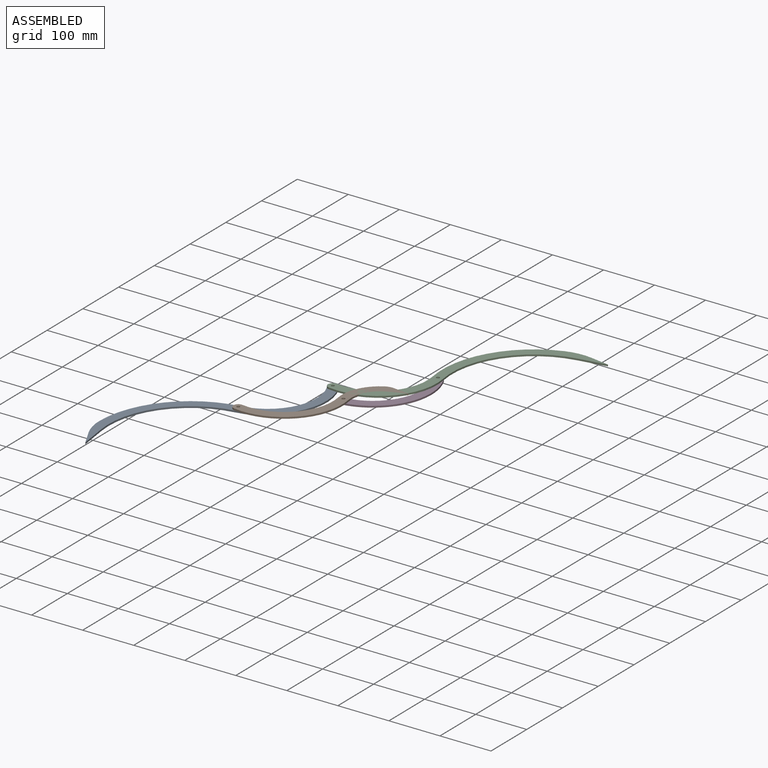
[diagram: assembled view]
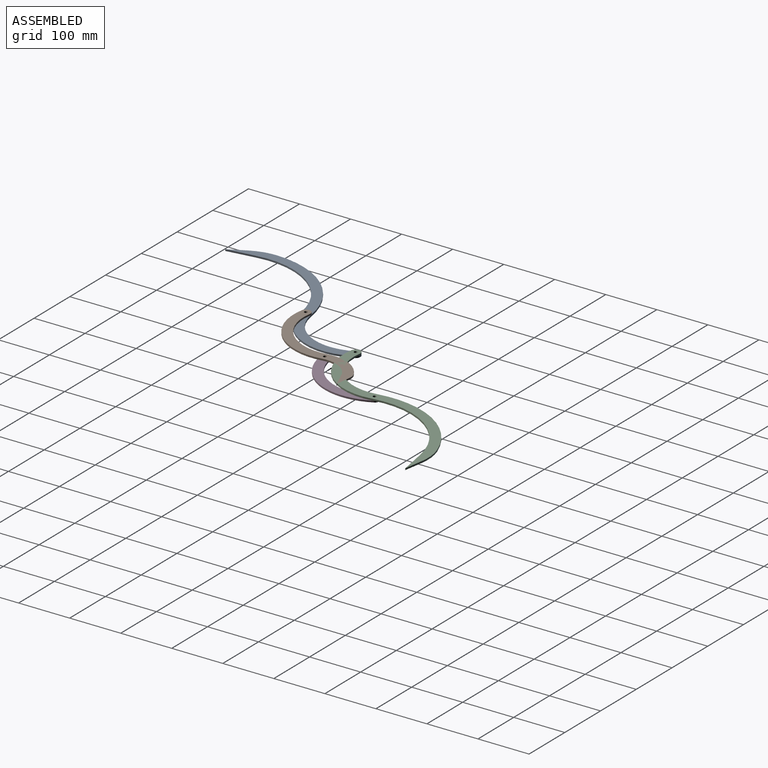
[diagram: assembled view, second angle]
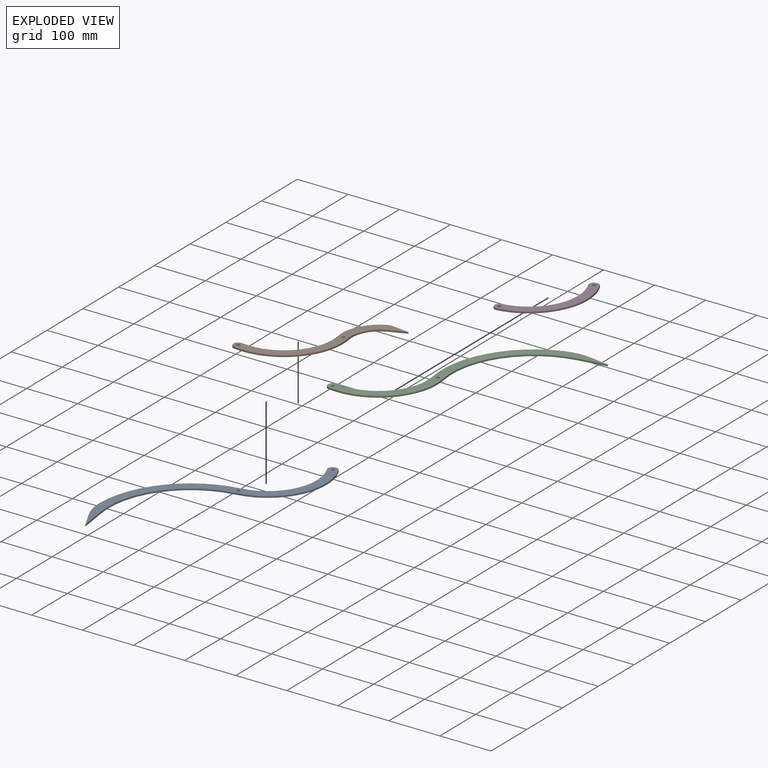
[diagram: exploded view]
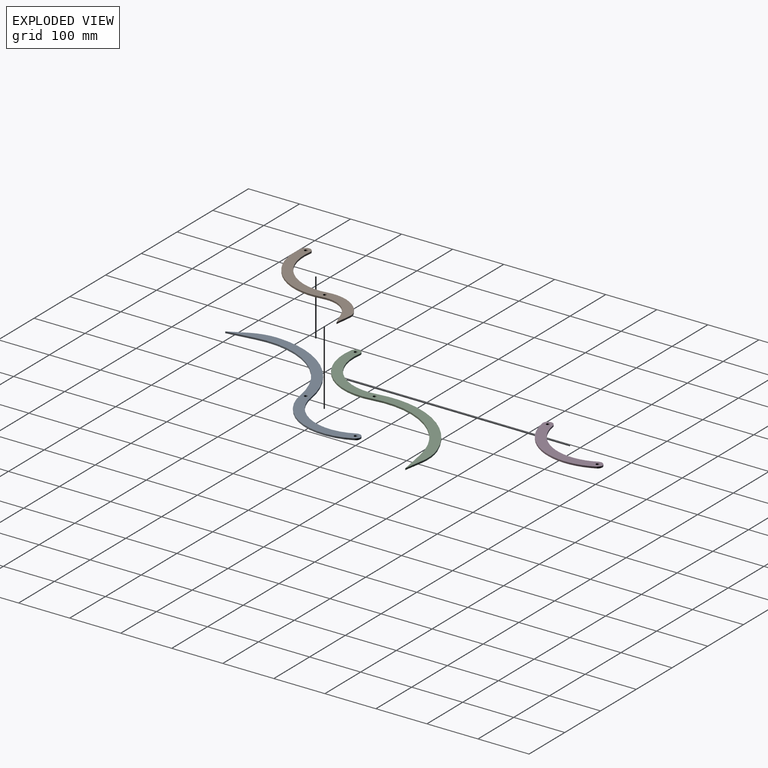
[diagram: exploded view, second angle]
ASSEMBLY  parts=4 mates=4
PART A: 12 faces, bbox 255.1x408.6x3.2 mm
  f0: cylinder r=9.53mm len=17.99mm, axis (0,0,1), area 95mm2, adj f1,f6,f7,f8
  f1: cylinder r=114.84mm len=166.22mm, axis (0,0,1), area 693.5mm2, adj f0,f2,f7,f8
  f2: cylinder r=160.87mm len=183.03mm, axis (0,0,1), area 804.6mm2, adj f1,f3,f7,f8
  f3: plane 54.18x7.61mm, normal (0.99,0.14,0), area 173.7mm2, adj f2,f4,f7,f8
  f4: plane 33.28x17.14mm, normal (-0.89,-0.46,0), area 118.9mm2, adj f3,f7,f8,f9
  f5: cylinder r=179.92mm len=173.95mm, axis (0,0,1), area 801.9mm2, adj f6,f7,f8,f9
  f6: cylinder r=95.79mm len=138.64mm, axis (0,0,1), area 578.5mm2, adj f0,f5,f7,f8
  f7: plane 408.59x255.11mm, normal (0,0,-1), area 9495.4mm2, adj f0,f1,f2,f3,f4,f5,f6,f9
  f8: plane 408.59x255.11mm, normal (0,0,1), area 9495.4mm2, adj f0,f1,f2,f3,f4,f5,f6,f9
  f9: cylinder r=101.6mm len=48.83mm, axis (0,0,1), area 160.7mm2, adj f4,f5,f7,f8
  f10: cylinder r=3.17mm len=6.35mm, axis (0,0,1), area 63.3mm2, adj f7,f8
  f11: cylinder r=3.17mm len=6.35mm, axis (0,0,1), area 63.3mm2, adj f7,f8
PART B: 12 faces, bbox 164x256.2x3.2 mm
  f0: cylinder r=114.84mm len=166.22mm, axis (0,0,-1), area 693.5mm2, adj f1,f6,f7,f8
  f1: cylinder r=55.56mm len=50.97mm, axis (0,0,-1), area 238.9mm2, adj f0,f2,f7,f8
  f2: plane 33.81x3.18mm, normal (-1,-0.07,0), area 107.6mm2, adj f1,f3,f7,f8
  f3: plane 28.49x13.4mm, normal (0.9,-0.43,0), area 100mm2, adj f2,f7,f8,f11
  f4: cylinder r=74.61mm len=62.48mm, axis (0,0,-1), area 291.9mm2, adj f5,f7,f8,f11
  f5: cylinder r=95.79mm len=138.64mm, axis (0,0,-1), area 578.5mm2, adj f4,f6,f7,f8
  f6: cylinder r=9.53mm len=17.99mm, axis (0,0,-1), area 95mm2, adj f0,f5,f7,f8
  f7: plane 256.16x164.03mm, normal (0,0,1), area 5891.4mm2, adj f0,f1,f2,f3,f4,f5,f6,f9
  f8: plane 256.16x164.03mm, normal (0,0,-1), area 5891.4mm2, adj f0,f1,f2,f3,f4,f5,f6,f9
  f9: cylinder r=3.17mm len=6.35mm, axis (0,0,-1), area 63.3mm2, adj f7,f8
  f10: cylinder r=3.17mm len=6.35mm, axis (0,0,-1), area 63.3mm2, adj f7,f8
  f11: cylinder r=25.4mm len=15.72mm, axis (0,0,-1), area 51.1mm2, adj f3,f4,f7,f8
PART C: 12 faces, bbox 255.1x408.6x3.2 mm
  f0: cylinder r=9.53mm len=17.99mm, axis (0,0,-1), area 95mm2, adj f1,f6,f7,f8
  f1: cylinder r=114.84mm len=166.22mm, axis (0,0,-1), area 693.5mm2, adj f0,f2,f7,f8
  f2: cylinder r=160.87mm len=183.03mm, axis (0,0,-1), area 804.6mm2, adj f1,f3,f7,f8
  f3: plane 54.18x7.61mm, normal (-0.99,0.14,0), area 173.7mm2, adj f2,f4,f7,f8
  f4: plane 33.28x17.14mm, normal (0.89,-0.46,0), area 118.9mm2, adj f3,f7,f8,f9
  f5: cylinder r=179.92mm len=173.95mm, axis (0,0,-1), area 801.9mm2, adj f6,f7,f8,f9
  f6: cylinder r=95.79mm len=138.64mm, axis (0,0,-1), area 578.5mm2, adj f0,f5,f7,f8
  f7: plane 408.59x255.11mm, normal (0,0,1), area 9495.4mm2, adj f0,f1,f2,f3,f4,f5,f6,f9
  f8: plane 408.59x255.11mm, normal (0,0,-1), area 9495.4mm2, adj f0,f1,f2,f3,f4,f5,f6,f9
  f9: cylinder r=101.6mm len=48.83mm, axis (0,0,-1), area 160.7mm2, adj f4,f5,f7,f8
  f10: cylinder r=3.17mm len=6.35mm, axis (0,0,-1), area 63.3mm2, adj f7,f8
  f11: cylinder r=3.17mm len=6.35mm, axis (0,0,-1), area 63.3mm2, adj f7,f8
PART D: 8 faces, bbox 109.2x171.5x3.2 mm
  f0: plane 171.48x109.22mm, normal (0,0,-1), area 4037.6mm2, adj f2,f3,f4,f5,f6,f7
  f1: plane 171.48x109.22mm, normal (0,0,1), area 4037.6mm2, adj f2,f3,f4,f5,f6,f7
  f2: cylinder r=114.84mm len=166.22mm, axis (0,0,1), area 693.5mm2, adj f0,f1,f4,f7
  f3: cylinder r=95.79mm len=138.64mm, axis (0,0,1), area 578.5mm2, adj f0,f1,f4,f7
  f4: cylinder r=9.53mm len=17.99mm, axis (0,0,1), area 95mm2, adj f0,f1,f2,f3
  f5: cylinder r=3.17mm len=6.35mm, axis (0,0,1), area 63.3mm2, adj f0,f1
  f6: cylinder r=3.17mm len=6.35mm, axis (0,0,1), area 63.3mm2, adj f0,f1
  f7: cylinder r=9.53mm len=18.95mm, axis (0,0,-1), area 95mm2, adj f0,f1,f2,f3
PLACE A t=(48.51,-399.06,3.18)mm
PLACE B rot(axis=(0,0,1),108deg) t=(116.83,44.57,3.18)mm
PLACE C rot(axis=(0,0,1),108deg) t=(364.54,169.45,3.17)mm
PLACE D t=(90.73,-124.88,3.18)mm
MATE revolute D.f4 <-> C.f11  axis (0,0,1) through (120.71,121.75,3.18)mm
MATE revolute A.f11 <-> B.f6  axis (0,0,1) through (-78.49,-152.43,3.18)mm
MATE revolute C.f0 <-> A.f0  axis (0,0,-1) through (0,0,3.18)mm
MATE revolute D.f6 <-> B.f9  axis (0,0,1) through (42.22,-30.68,3.18)mm
